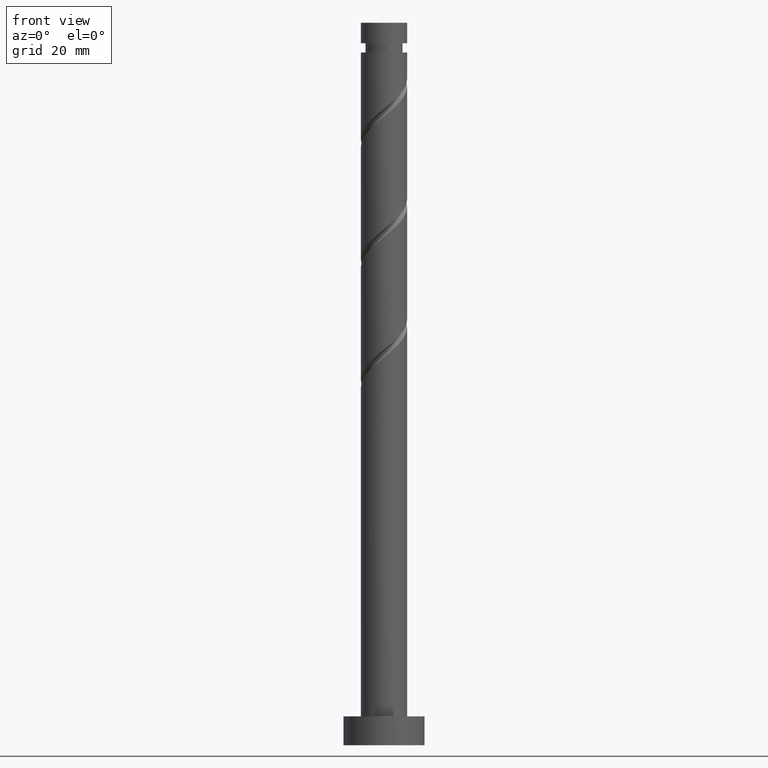
[diagram: clean part render]
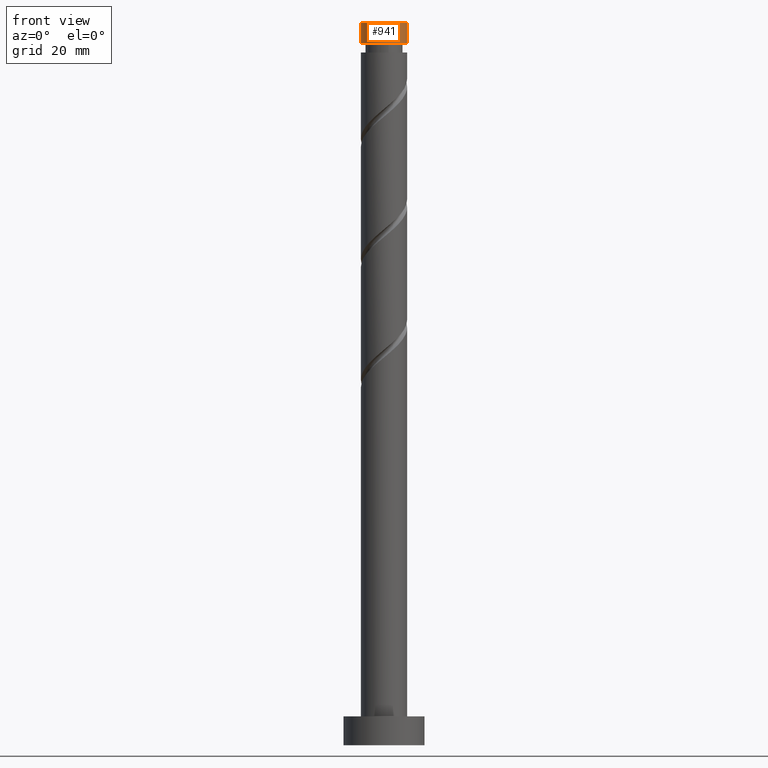
[diagram: same view with one face highlighted and labeled with its STEP entity id]
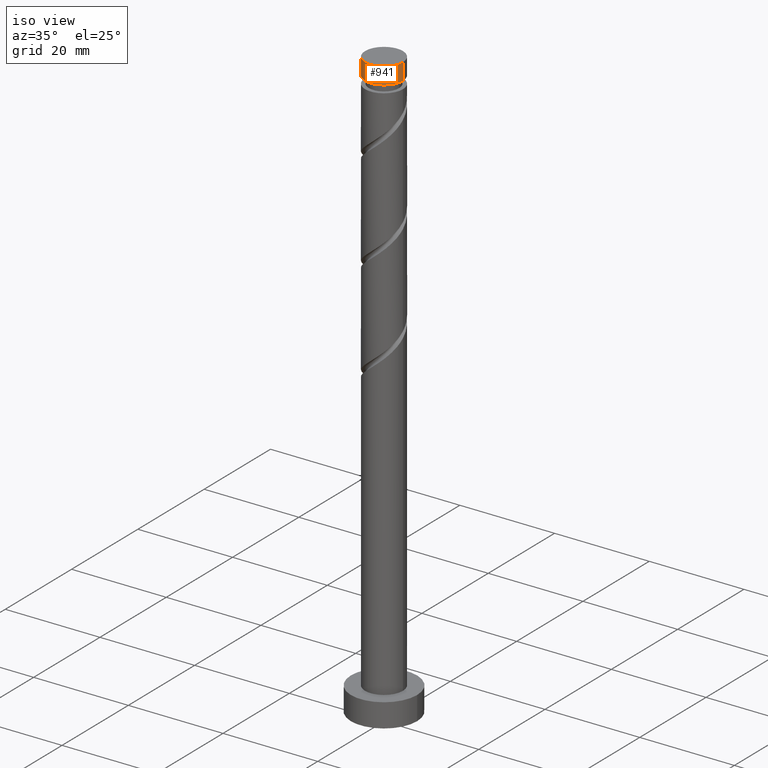
[diagram: same view with one face highlighted and labeled with its STEP entity id]
A machine part, front view. The second image highlights one B-rep face of the part: STEP entity #941.
A second angle (iso view) of the same face is appended — the face is thin or edge-on in the first view.
In plain terms, the highlighted cylindrical surface (edge-blend (fillet) strip) has radius 4 mm, axis along (-0, -0, -1).
Its self-contained STEP definition (entity closure, byte-faithful):
#36 = ORIENTED_EDGE ( 'NONE', *, *, #663, .F. ) ;
#113 = CARTESIAN_POINT ( 'NONE',  ( 4.000000000000000000, 4.898587196589412829E-16, 125.0000000000000000 ) ) ;
#163 = ORIENTED_EDGE ( 'NONE', *, *, #178, .F. ) ;
#178 = EDGE_CURVE ( 'NONE', #664, #453, #1188, .T. ) ;
#183 = DIRECTION ( 'NONE',  ( -0.000000000000000000, -0.000000000000000000, -1.000000000000000000 ) ) ;
#189 = DIRECTION ( 'NONE',  ( 1.000000000000000000, 0.000000000000000000, 0.000000000000000000 ) ) ;
#263 = DIRECTION ( 'NONE',  ( -0.000000000000000000, -0.000000000000000000, -1.000000000000000000 ) ) ;
#291 = ORIENTED_EDGE ( 'NONE', *, *, #865, .T. ) ;
#310 = CARTESIAN_POINT ( 'NONE',  ( 4.000000000000000000, 4.898587196589412829E-16, 125.0000000000000000 ) ) ;
#325 = EDGE_LOOP ( 'NONE', ( #163, #1523, #291, #36 ) ) ;
#341 = AXIS2_PLACEMENT_3D ( 'NONE', #1003, #902, #189 ) ;
#367 = AXIS2_PLACEMENT_3D ( 'NONE', #1371, #1154, #416 ) ;
#416 = DIRECTION ( 'NONE',  ( -1.000000000000000000, 0.000000000000000000, 0.000000000000000000 ) ) ;
#435 = CARTESIAN_POINT ( 'NONE',  ( -4.000000000000000000, 0.000000000000000000, 125.0000000000000000 ) ) ;
#453 = VERTEX_POINT ( 'NONE', #1404 ) ;
#522 = VERTEX_POINT ( 'NONE', #959 ) ;
#543 = DIRECTION ( 'NONE',  ( -1.000000000000000000, 0.000000000000000000, 0.000000000000000000 ) ) ;
#663 = EDGE_CURVE ( 'NONE', #453, #522, #874, .T. ) ;
#664 = VERTEX_POINT ( 'NONE', #310 ) ;
#763 = LINE ( 'NONE', #849, #1247 ) ;
#774 = FACE_OUTER_BOUND ( 'NONE', #325, .T. ) ;
#778 = AXIS2_PLACEMENT_3D ( 'NONE', #1499, #183, #543 ) ;
#849 = CARTESIAN_POINT ( 'NONE',  ( -4.000000000000000000, 0.000000000000000000, 125.0000000000000000 ) ) ;
#865 = EDGE_CURVE ( 'NONE', #1375, #522, #763, .T. ) ;
#874 = CIRCLE ( 'NONE', #367, 3.999999999999996447 ) ;
#902 = DIRECTION ( 'NONE',  ( 0.000000000000000000, 0.000000000000000000, 1.000000000000000000 ) ) ;
#941 = ADVANCED_FACE ( 'NONE', ( #774 ), #1243, .T. ) ;
#954 = DIRECTION ( 'NONE',  ( -0.000000000000000000, -0.000000000000000000, -1.000000000000000000 ) ) ;
#959 = CARTESIAN_POINT ( 'NONE',  ( -3.999999999999996447, 0.000000000000000000, 121.4468909634495617 ) ) ;
#1003 = CARTESIAN_POINT ( 'NONE',  ( 0.000000000000000000, 0.000000000000000000, 125.0000000000000000 ) ) ;
#1130 = EDGE_CURVE ( 'NONE', #1375, #664, #1220, .T. ) ;
#1154 = DIRECTION ( 'NONE',  ( -0.000000000000000000, -0.000000000000000000, -1.000000000000000000 ) ) ;
#1188 = LINE ( 'NONE', #113, #1372 ) ;
#1220 = CIRCLE ( 'NONE', #341, 4.000000000000000000 ) ;
#1243 = CYLINDRICAL_SURFACE ( 'NONE', #778, 4.000000000000000000 ) ;
#1247 = VECTOR ( 'NONE', #263, 1000.000000000000000 ) ;
#1371 = CARTESIAN_POINT ( 'NONE',  ( 0.000000000000000000, 0.000000000000000000, 121.4468909634495617 ) ) ;
#1372 = VECTOR ( 'NONE', #954, 1000.000000000000000 ) ;
#1375 = VERTEX_POINT ( 'NONE', #435 ) ;
#1404 = CARTESIAN_POINT ( 'NONE',  ( 3.999999999999996447, 4.898587196589410857E-16, 121.4468909634495617 ) ) ;
#1499 = CARTESIAN_POINT ( 'NONE',  ( 0.000000000000000000, 0.000000000000000000, 125.0000000000000000 ) ) ;
#1523 = ORIENTED_EDGE ( 'NONE', *, *, #1130, .F. ) ;